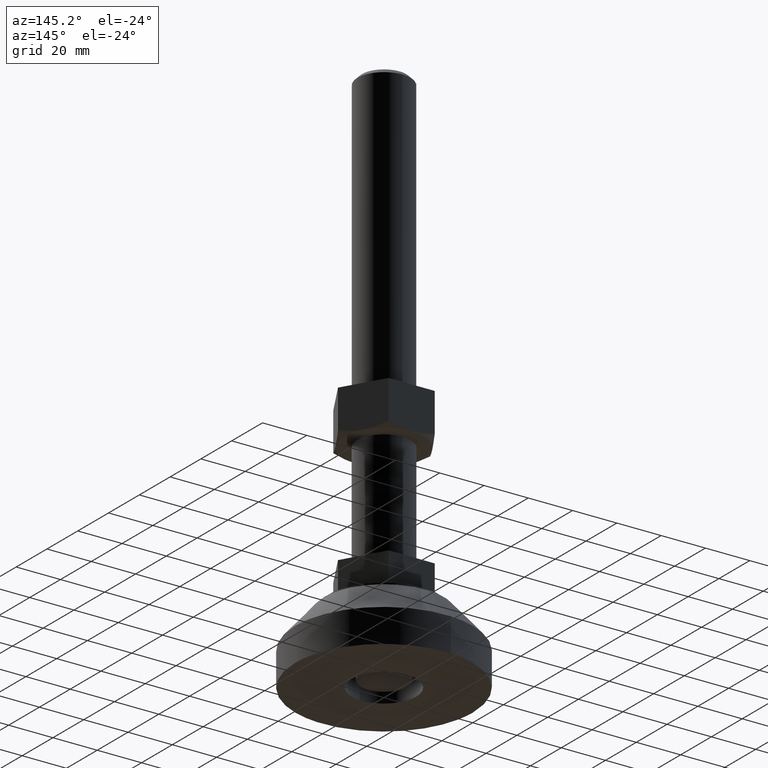
[diagram: clean part render]
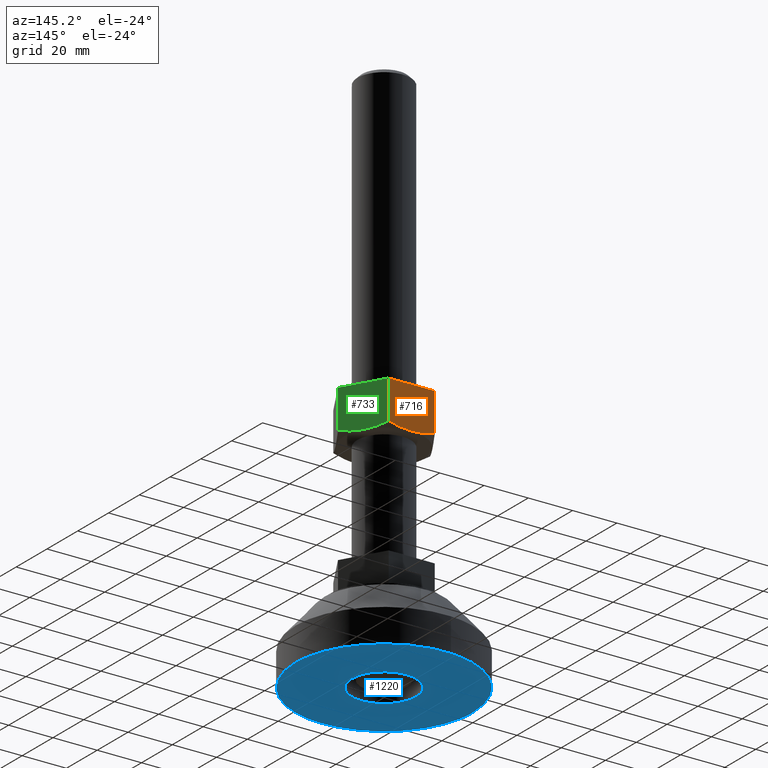
[diagram: same view with three faces highlighted in distinct colors, each labeled with its STEP entity id]
A machine part, auxiliary view with three faces highlighted in distinct colors.
Their STEP definitions:

[orange] entity #716 — the highlighted face is a freeform B-spline surface patch.
#209=CARTESIAN_POINT('',(1.183421E-013,17.999999999745999,97.500000000000000));
#210=VERTEX_POINT('',#209);
#306=CARTESIAN_POINT('',(-10.392304845157501,18.000000000437449,99.107695154885903));
#307=VERTEX_POINT('',#306);
#321=CARTESIAN_POINT('',(1.183421E-013,17.999999999745999,97.500000000000000));
#322=CARTESIAN_POINT('',(-0.877281738883075,18.0,97.500000435064720));
#323=CARTESIAN_POINT('',(-1.751758808677181,18.0,97.537211237822646));
#324=CARTESIAN_POINT('',(-3.496415527135785,18.0,97.682490794133244));
#325=CARTESIAN_POINT('',(-4.366592789092302,18.0,97.790591212841235));
#326=CARTESIAN_POINT('',(-5.668263560575949,18.0,98.000439372592396));
#327=CARTESIAN_POINT('',(-6.101556352284672,18.0,98.078315508728565));
#328=CARTESIAN_POINT('',(-6.967029943479313,18.0,98.248820908261322));
#329=CARTESIAN_POINT('',(-7.399391557168437,18.000000000000011,98.341490212463754));
#330=CARTESIAN_POINT('',(-8.693811691916300,18.0,98.639624696338529));
#331=CARTESIAN_POINT('',(-9.546941695527117,18.0,98.863659833668351));
#332=CARTESIAN_POINT('',(-10.392304845233800,18.0,99.107695154689409));
#333=B_SPLINE_CURVE_WITH_KNOTS('',3,(#321,#322,#323,#324,#325,#326,#327,#328,#329,#330,#331,#332),.UNSPECIFIED.,.F.,.U.,(4,2,2,2,2,4),(0.0,0.124851510276907,0.249851510276907,0.312351510276907,0.374851510276907,0.499851510276907),.UNSPECIFIED.);
#334=EDGE_CURVE('',#210,#307,#333,.T.);
#354=CARTESIAN_POINT('',(10.392304845919639,17.999999999997549,99.107695154885903));
#355=VERTEX_POINT('',#354);
#356=CARTESIAN_POINT('',(10.392304845919639,17.999999999997549,99.107695154885903));
#357=CARTESIAN_POINT('',(9.552365412746072,18.0,98.865225525954372));
#358=CARTESIAN_POINT('',(8.706885854505080,18.0,98.643141576939442));
#359=CARTESIAN_POINT('',(7.002191555010477,18.0,98.249514242720494));
#360=CARTESIAN_POINT('',(6.142968135499045,17.999999999999989,98.078002790403133));
#361=CARTESIAN_POINT('',(4.841642848649009,18.0,97.866694927194118));
#362=CARTESIAN_POINT('',(4.187855880681922,18.000000000000011,97.772537393106745));
#363=CARTESIAN_POINT('',(3.528980108691111,18.0,97.697104838820991));
#364=CARTESIAN_POINT('',(3.088556391402211,18.0,97.651133435605246));
#365=CARTESIAN_POINT('',(2.867507011070464,17.999999999999989,97.630286684983986));
#366=CARTESIAN_POINT('',(1.762606344271278,18.0,97.537492186758698));
#367=CARTESIAN_POINT('',(0.881461942450520,18.000000000000011,97.500088341333779));
#368=CARTESIAN_POINT('',(0.002086760271636,18.0,97.500000052523788));
#369=CARTESIAN_POINT('',(0.001043378492292,18.0,97.500000000405791));
#370=CARTESIAN_POINT('',(6.801708E-010,18.0,97.500000000922100));
#371=B_SPLINE_CURVE_WITH_KNOTS('',3,(#356,#357,#358,#359,#360,#361,#362,#363,#364,#365,#366,#367,#368,#369,#370),.UNSPECIFIED.,.F.,.U.,(4,2,2,1,2,2,2,4),(0.499851510307518,0.624851510307518,0.749851510307518,0.812351510307518,0.843601510307518,0.874851510307518,0.999851510307518,1.0),.UNSPECIFIED.);
#372=EDGE_CURVE('',#355,#210,#371,.T.);
#603=CARTESIAN_POINT('',(10.392304845413721,17.999999999999751,116.500000000000000));
#604=VERTEX_POINT('',#603);
#610=CARTESIAN_POINT('',(-10.392304845412919,18.0,116.500000000000000));
#611=VERTEX_POINT('',#610);
#612=CARTESIAN_POINT('',(10.392304845413721,17.999999999999751,116.500000000000000));
#613=CARTESIAN_POINT('',(-10.392304845412919,18.0,116.500000000000000));
#614=QUASI_UNIFORM_CURVE('',1,(#612,#613),.UNSPECIFIED.,.F.,.U.);
#615=EDGE_CURVE('',#604,#611,#614,.T.);
#688=CARTESIAN_POINT('',(-10.392304845157501,18.000000000437449,99.107695154885903));
#689=CARTESIAN_POINT('',(-10.392304845412919,18.0,116.500000000000000));
#690=QUASI_UNIFORM_CURVE('',1,(#688,#689),.UNSPECIFIED.,.F.,.U.);
#691=EDGE_CURVE('',#307,#611,#690,.T.);
#700=CARTESIAN_POINT('',(-11.430496059210370,18.0,96.550950036825682));
#701=CARTESIAN_POINT('',(-11.430496059210370,18.0,117.449050472794000));
#702=CARTESIAN_POINT('',(11.430496617203771,18.0,96.550950036825682));
#703=CARTESIAN_POINT('',(11.430496617203771,18.0,117.449050472794000));
#704=B_SPLINE_SURFACE_WITH_KNOTS('',1,1,((#700,#702),(#701,#703)),.UNSPECIFIED.,.F.,.F.,.U.,(2,2),(2,2),(0.0,20.898100435968360),(0.0,22.860992676414138),.UNSPECIFIED.);
#705=CARTESIAN_POINT('',(10.392304845919639,17.999999999997549,99.107695154885903));
#706=CARTESIAN_POINT('',(10.392304845413721,17.999999999999751,116.500000000000000));
#707=QUASI_UNIFORM_CURVE('',1,(#705,#706),.UNSPECIFIED.,.F.,.U.);
#708=EDGE_CURVE('',#355,#604,#707,.T.);
#709=ORIENTED_EDGE('',*,*,#708,.F.);
#710=ORIENTED_EDGE('',*,*,#372,.T.);
#711=ORIENTED_EDGE('',*,*,#334,.T.);
#712=ORIENTED_EDGE('',*,*,#691,.T.);
#713=ORIENTED_EDGE('',*,*,#615,.F.);
#714=EDGE_LOOP('',(#709,#710,#711,#712,#713));
#715=FACE_OUTER_BOUND('',#714,.T.);
#716=ADVANCED_FACE('',(#715),#704,.T.);

[blue] entity #1220 — the highlighted face is a freeform B-spline surface patch.
#1039=CARTESIAN_POINT('',(0.885203823408651,-14.472954577107600,1.113970E-013));
#1040=VERTEX_POINT('',#1039);
#1041=CARTESIAN_POINT('',(-14.499999999999771,1.136868E-013,0.0));
#1042=VERTEX_POINT('',#1041);
#1043=CARTESIAN_POINT('',(0.885203823408651,-14.472954577107604,1.110223E-013));
#1044=CARTESIAN_POINT('',(0.443015067906480,-14.499999999999888,1.110223E-013));
#1045=CARTESIAN_POINT('',(2.273737E-013,-14.499999999999890,1.110223E-013));
#1046=CARTESIAN_POINT('',(-14.499999999999774,-14.499999999999888,1.110223E-013));
#1047=CARTESIAN_POINT('',(-14.499999999999771,1.136868E-013,1.110223E-013));
#1055=(BOUNDED_CURVE()B_SPLINE_CURVE(2,(#1043,#1044,#1045,#1046,#1047),.UNSPECIFIED.,.F.,.U.)B_SPLINE_CURVE_WITH_KNOTS((3,2,3),(0.239332962240144,0.250000000000000,0.500000000000000),.UNSPECIFIED.)CURVE()GEOMETRIC_REPRESENTATION_ITEM()RATIONAL_B_SPLINE_CURVE((0.976072041669292,0.987502787901245,1.0,0.707106781186548,1.0))REPRESENTATION_ITEM(''));
#1056=EDGE_CURVE('',#1040,#1042,#1055,.T.);
#1058=CARTESIAN_POINT('',(-0.885203823408195,14.472954577107830,1.104747E-013));
#1059=VERTEX_POINT('',#1058);
#1060=CARTESIAN_POINT('',(-14.499999999999771,1.136868E-013,0.0));
#1061=CARTESIAN_POINT('',(-14.499999999999780,13.640237969988235,1.044394E-013));
#1062=CARTESIAN_POINT('',(-0.885203823408190,14.472954577107826,1.108152E-013));
#1070=(BOUNDED_CURVE()B_SPLINE_CURVE(2,(#1060,#1061,#1062),.UNSPECIFIED.,.F.,.U.)B_SPLINE_CURVE_WITH_KNOTS((3,3),(0.500000000000000,0.739332962240144),.UNSPECIFIED.)CURVE()GEOMETRIC_REPRESENTATION_ITEM()RATIONAL_B_SPLINE_CURVE((1.0,0.719603993285303,0.976072041669293))REPRESENTATION_ITEM(''));
#1071=EDGE_CURVE('',#1042,#1059,#1070,.T.);
#1106=CARTESIAN_POINT('',(14.500000000000229,1.136868E-013,1.110223E-013));
#1107=VERTEX_POINT('',#1106);
#1108=CARTESIAN_POINT('',(14.500000000000229,1.136868E-013,1.110223E-013));
#1109=CARTESIAN_POINT('',(14.500000000000222,-13.640237969987997,1.110223E-013));
#1110=CARTESIAN_POINT('',(0.885203823408651,-14.472954577107604,1.110223E-013));
#1118=(BOUNDED_CURVE()B_SPLINE_CURVE(2,(#1108,#1109,#1110),.UNSPECIFIED.,.F.,.U.)B_SPLINE_CURVE_WITH_KNOTS((3,3),(0.0,0.239332962240144),.UNSPECIFIED.)CURVE()GEOMETRIC_REPRESENTATION_ITEM()RATIONAL_B_SPLINE_CURVE((1.0,0.719603993285303,0.976072041669292))REPRESENTATION_ITEM(''));
#1119=EDGE_CURVE('',#1107,#1040,#1118,.T.);
#1125=CARTESIAN_POINT('',(-0.885203823408199,14.472954577107831,1.108152E-013));
#1126=CARTESIAN_POINT('',(-0.443015067906027,14.500000000000112,1.110223E-013));
#1127=CARTESIAN_POINT('',(2.273737E-013,14.500000000000121,1.110223E-013));
#1128=CARTESIAN_POINT('',(14.500000000000227,14.500000000000114,1.110223E-013));
#1129=CARTESIAN_POINT('',(14.500000000000229,1.136868E-013,1.110223E-013));
#1137=(BOUNDED_CURVE()B_SPLINE_CURVE(2,(#1125,#1126,#1127,#1128,#1129),.UNSPECIFIED.,.F.,.U.)B_SPLINE_CURVE_WITH_KNOTS((3,2,3),(0.739332962240144,0.750000000000000,1.0),.UNSPECIFIED.)CURVE()GEOMETRIC_REPRESENTATION_ITEM()RATIONAL_B_SPLINE_CURVE((0.976072041669292,0.987502787901245,1.0,0.707106781186548,1.0))REPRESENTATION_ITEM(''));
#1138=EDGE_CURVE('',#1059,#1107,#1137,.T.);
#1143=CARTESIAN_POINT('',(43.995999844944478,-43.995015492367607,-2.842171E-014));
#1144=CARTESIAN_POINT('',(-43.996001990711690,-43.995015492367607,-2.842171E-014));
#1145=CARTESIAN_POINT('',(43.995999844944478,43.995014061856153,-2.842171E-014));
#1146=CARTESIAN_POINT('',(-43.996001990711690,43.995014061856153,-2.842171E-014));
#1147=B_SPLINE_SURFACE_WITH_KNOTS('',1,1,((#1143,#1145),(#1144,#1146)),.UNSPECIFIED.,.F.,.F.,.U.,(2,2),(2,2),(0.0,87.992001835656168),(0.0,87.990029554223767),.UNSPECIFIED.);
#1148=CARTESIAN_POINT('',(-40.0,0.0,-5.684342E-014));
#1149=VERTEX_POINT('',#1148);
#1150=CARTESIAN_POINT('',(-2.441919458484927,39.925393289957469,-5.614953E-014));
#1151=VERTEX_POINT('',#1150);
#1152=CARTESIAN_POINT('',(-40.0,0.0,-5.684342E-014));
#1153=CARTESIAN_POINT('',(-39.999999999999815,37.628263565236246,-5.649647E-014));
#1154=CARTESIAN_POINT('',(-2.441919458484927,39.925393289957469,-5.614953E-014));
#1162=(BOUNDED_CURVE()B_SPLINE_CURVE(2,(#1152,#1153,#1154),.UNSPECIFIED.,.F.,.U.)B_SPLINE_CURVE_WITH_KNOTS((3,3),(0.0,0.239333057851230),.UNSPECIFIED.)CURVE()GEOMETRIC_REPRESENTATION_ITEM()RATIONAL_B_SPLINE_CURVE((1.0,0.719603881269948,0.976072246582136))REPRESENTATION_ITEM(''));
#1163=EDGE_CURVE('',#1149,#1151,#1162,.T.);
#1164=ORIENTED_EDGE('',*,*,#1163,.T.);
#1165=CARTESIAN_POINT('',(40.0,0.0,0.0));
#1166=VERTEX_POINT('',#1165);
#1167=CARTESIAN_POINT('',(-2.441919458484927,39.925393289957469,-5.614953E-014));
#1168=CARTESIAN_POINT('',(-1.222099439473736,39.999999999993953,-5.534263E-014));
#1169=CARTESIAN_POINT('',(3.658540E-013,39.999999999994053,-5.448488E-014));
#1170=CARTESIAN_POINT('',(40.000000000000178,39.999999999997108,-2.641012E-014));
#1171=CARTESIAN_POINT('',(40.0,0.0,0.0));
#1179=(BOUNDED_CURVE()B_SPLINE_CURVE(2,(#1167,#1168,#1169,#1170,#1171),.UNSPECIFIED.,.F.,.U.)B_SPLINE_CURVE_WITH_KNOTS((3,2,3),(0.239333057851230,0.250000000000000,0.500000000000000),.UNSPECIFIED.)CURVE()GEOMETRIC_REPRESENTATION_ITEM()RATIONAL_B_SPLINE_CURVE((0.976072246582136,0.987502899916600,1.0,0.707106781186548,1.0))REPRESENTATION_ITEM(''));
#1180=EDGE_CURVE('',#1151,#1166,#1179,.T.);
#1181=ORIENTED_EDGE('',*,*,#1180,.T.);
#1182=CARTESIAN_POINT('',(2.441919458484923,-39.925393289957469,-5.700995E-014));
#1183=VERTEX_POINT('',#1182);
#1184=CARTESIAN_POINT('',(40.0,0.0,0.0));
#1185=CARTESIAN_POINT('',(39.999999999999808,-37.628263565236246,-2.850498E-014));
#1186=CARTESIAN_POINT('',(2.441919458484924,-39.925393289957469,-5.700995E-014));
#1194=(BOUNDED_CURVE()B_SPLINE_CURVE(2,(#1184,#1185,#1186),.UNSPECIFIED.,.F.,.U.)B_SPLINE_CURVE_WITH_KNOTS((3,3),(0.500000000000000,0.739333057851230),.UNSPECIFIED.)CURVE()GEOMETRIC_REPRESENTATION_ITEM()RATIONAL_B_SPLINE_CURVE((1.0,0.719603881269948,0.976072246582136))REPRESENTATION_ITEM(''));
#1195=EDGE_CURVE('',#1166,#1183,#1194,.T.);
#1196=ORIENTED_EDGE('',*,*,#1195,.T.);
#1197=CARTESIAN_POINT('',(2.441919458484924,-39.925393289957469,-5.700995E-014));
#1198=CARTESIAN_POINT('',(1.222099439473729,-39.999999999993946,-5.700756E-014));
#1199=CARTESIAN_POINT('',(-3.761962E-013,-39.999999999994053,-5.700502E-014));
#1200=CARTESIAN_POINT('',(-40.000000000000178,-39.999999999997108,-5.692175E-014));
#1201=CARTESIAN_POINT('',(-40.0,0.0,-5.684342E-014));
#1209=(BOUNDED_CURVE()B_SPLINE_CURVE(2,(#1197,#1198,#1199,#1200,#1201),.UNSPECIFIED.,.F.,.U.)B_SPLINE_CURVE_WITH_KNOTS((3,2,3),(0.739333057851230,0.750000000000000,1.0),.UNSPECIFIED.)CURVE()GEOMETRIC_REPRESENTATION_ITEM()RATIONAL_B_SPLINE_CURVE((0.976072246582136,0.987502899916600,1.0,0.707106781186548,1.0))REPRESENTATION_ITEM(''));
#1210=EDGE_CURVE('',#1183,#1149,#1209,.T.);
#1211=ORIENTED_EDGE('',*,*,#1210,.T.);
#1212=EDGE_LOOP('',(#1164,#1181,#1196,#1211));
#1213=FACE_OUTER_BOUND('',#1212,.T.);
#1214=ORIENTED_EDGE('',*,*,#1071,.F.);
#1215=ORIENTED_EDGE('',*,*,#1056,.F.);
#1216=ORIENTED_EDGE('',*,*,#1119,.F.);
#1217=ORIENTED_EDGE('',*,*,#1138,.F.);
#1218=EDGE_LOOP('',(#1214,#1215,#1216,#1217));
#1219=FACE_BOUND('',#1218,.T.);
#1220=ADVANCED_FACE('',(#1213,#1219),#1147,.T.);

[green] entity #733 — the highlighted face is a freeform B-spline surface patch.
#224=CARTESIAN_POINT('',(15.588457267900051,8.999999999873030,97.500000000000000));
#225=VERTEX_POINT('',#224);
#354=CARTESIAN_POINT('',(10.392304845919639,17.999999999997549,99.107695154885903));
#355=VERTEX_POINT('',#354);
#374=CARTESIAN_POINT('',(15.588457267900051,8.999999999873030,97.500000000000000));
#375=CARTESIAN_POINT('',(15.481315914300909,9.185574268406741,97.500000043512614));
#376=CARTESIAN_POINT('',(15.374015849467380,9.371423432353863,97.502209877789127));
#377=CARTESIAN_POINT('',(15.155775716641450,9.749426430658932,97.511217426481878));
#378=CARTESIAN_POINT('',(15.045003729873180,9.941289139796936,97.518151183907946));
#379=CARTESIAN_POINT('',(14.713509541403511,10.515453916640210,97.545891086833223));
#380=CARTESIAN_POINT('',(14.493281237455520,10.896900528342860,97.573655188426130));
#381=CARTESIAN_POINT('',(13.834800101353840,12.037423311896649,97.683556322917653));
#382=CARTESIAN_POINT('',(13.398756197239400,12.792673508153531,97.792364395394316));
#383=CARTESIAN_POINT('',(12.098387642017400,15.044977914363001,98.212522526810190));
#384=CARTESIAN_POINT('',(11.241795898953310,16.528638334693980,98.617241266311240));
#385=CARTESIAN_POINT('',(10.392304845523890,17.999999999808939,99.107695154677444));
#386=B_SPLINE_CURVE_WITH_KNOTS('',3,(#374,#375,#376,#377,#378,#379,#380,#381,#382,#383,#384,#385),.UNSPECIFIED.,.F.,.U.,(4,2,2,2,2,4),(0.500936633678290,0.531250000000001,0.562500000000001,0.625000000000001,0.750000000000001,1.0),.UNSPECIFIED.);
#387=EDGE_CURVE('',#225,#355,#386,.T.);
#407=CARTESIAN_POINT('',(20.784609691077652,-4.392649E-010,99.107695154885903));
#408=VERTEX_POINT('',#407);
#409=CARTESIAN_POINT('',(20.784609691077652,-4.392649E-010,99.107695154885903));
#410=CARTESIAN_POINT('',(19.936176362230540,1.469529631963607,98.617851944066317));
#411=CARTESIAN_POINT('',(19.081557466117559,2.949772981139701,98.214132543284578));
#412=CARTESIAN_POINT('',(17.786261838966901,5.193290818186438,97.794670784484524));
#413=CARTESIAN_POINT('',(17.352263406965690,5.944998152817759,97.685944140131639));
#414=CARTESIAN_POINT('',(16.479212292302311,7.457167041019384,97.538862945891779));
#415=CARTESIAN_POINT('',(16.040155242265381,8.217636159104647,97.500569204486325));
#416=CARTESIAN_POINT('',(15.595078103240279,8.988532377183507,97.500002109278341));
#417=CARTESIAN_POINT('',(15.591767761410660,8.994266057422834,97.500000000847052));
#418=CARTESIAN_POINT('',(15.588457268057860,9.000000000107995,97.500000002125731));
#419=B_SPLINE_CURVE_WITH_KNOTS('',3,(#409,#410,#411,#412,#413,#414,#415,#416,#417,#418),.UNSPECIFIED.,.F.,.U.,(4,2,2,2,4),(0.0,0.250000000000000,0.375000000000001,0.500000000000001,0.500936633656448),.UNSPECIFIED.);
#420=EDGE_CURVE('',#408,#225,#419,.T.);
#596=CARTESIAN_POINT('',(20.784609690826851,0.0,116.500000000000000));
#597=VERTEX_POINT('',#596);
#603=CARTESIAN_POINT('',(10.392304845413721,17.999999999999751,116.500000000000000));
#604=VERTEX_POINT('',#603);
#605=CARTESIAN_POINT('',(20.784609690826851,0.0,116.500000000000000));
#606=CARTESIAN_POINT('',(10.392304845413721,17.999999999999751,116.500000000000000));
#607=QUASI_UNIFORM_CURVE('',1,(#605,#606),.UNSPECIFIED.,.F.,.U.);
#608=EDGE_CURVE('',#597,#604,#607,.T.);
#705=CARTESIAN_POINT('',(10.392304845919639,17.999999999997549,99.107695154885903));
#706=CARTESIAN_POINT('',(10.392304845413721,17.999999999999751,116.500000000000000));
#707=QUASI_UNIFORM_CURVE('',1,(#705,#706),.UNSPECIFIED.,.F.,.U.);
#708=EDGE_CURVE('',#355,#604,#707,.T.);
#717=CARTESIAN_POINT('',(21.303705297978471,-0.899099965572424,96.550950036825682));
#718=CARTESIAN_POINT('',(9.873208959771670,18.899100447931751,96.550950036825682));
#719=CARTESIAN_POINT('',(21.303705297978471,-0.899099965572424,117.449050472794000));
#720=CARTESIAN_POINT('',(9.873208959771670,18.899100447931751,117.449050472794000));
#721=B_SPLINE_SURFACE_WITH_KNOTS('',1,1,((#717,#719),(#718,#720)),.UNSPECIFIED.,.F.,.F.,.U.,(2,2),(2,2),(0.0,22.860992676413591),(0.0,20.898100435968360),.UNSPECIFIED.);
#722=CARTESIAN_POINT('',(20.784609691077652,-4.392649E-010,99.107695154885903));
#723=CARTESIAN_POINT('',(20.784609690826851,0.0,116.500000000000000));
#724=QUASI_UNIFORM_CURVE('',1,(#722,#723),.UNSPECIFIED.,.F.,.U.);
#725=EDGE_CURVE('',#408,#597,#724,.T.);
#726=ORIENTED_EDGE('',*,*,#725,.F.);
#727=ORIENTED_EDGE('',*,*,#420,.T.);
#728=ORIENTED_EDGE('',*,*,#387,.T.);
#729=ORIENTED_EDGE('',*,*,#708,.T.);
#730=ORIENTED_EDGE('',*,*,#608,.F.);
#731=EDGE_LOOP('',(#726,#727,#728,#729,#730));
#732=FACE_OUTER_BOUND('',#731,.T.);
#733=ADVANCED_FACE('',(#732),#721,.T.);